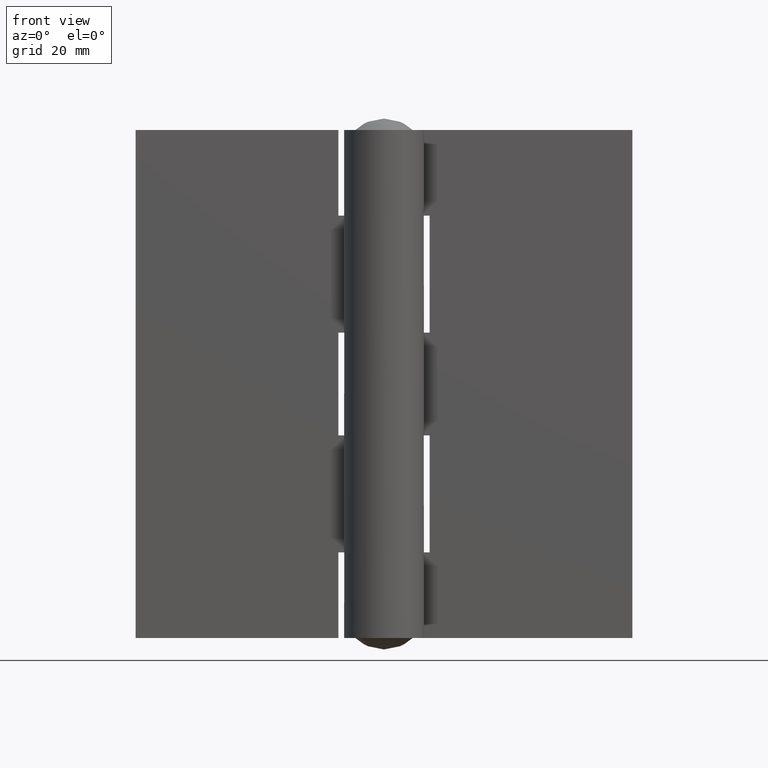
[diagram: clean part render]
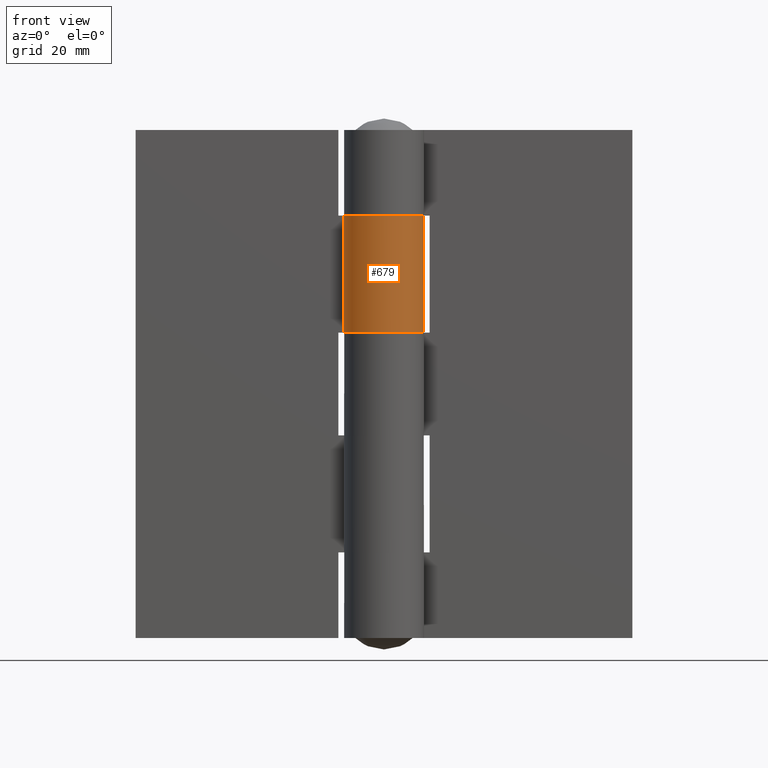
[diagram: same view with one face highlighted and labeled with its STEP entity id]
A machine part, front view. The second image highlights one B-rep face of the part: STEP entity #679.
In plain terms, the highlighted face is a freeform B-spline surface patch.
Its self-contained STEP definition (entity closure, byte-faithful):
#156=CARTESIAN_POINT('',(0.0,7.0,53.500006999999798));
#157=VERTEX_POINT('',#156);
#163=CARTESIAN_POINT('',(-5.779057016503650,3.950000000000000,53.500006999999798));
#164=VERTEX_POINT('',#163);
#165=CARTESIAN_POINT('',(-5.779057016503644,3.950000000000000,53.500006999999798));
#166=CARTESIAN_POINT('',(-8.870032947337561,-0.572259782513830,53.500006999999790));
#167=CARTESIAN_POINT('',(-5.223583395225030,-4.659847262854154,53.500006999999798));
#168=CARTESIAN_POINT('',(-1.577133843112500,-8.747434743194480,53.500006999999790));
#169=CARTESIAN_POINT('',(3.267261850540901,-6.190718859712502,53.500006999999798));
#170=CARTESIAN_POINT('',(8.111657544194310,-3.634002976230521,53.500006999999790));
#171=CARTESIAN_POINT('',(6.794668204481638,1.682998511884744,53.500006999999798));
#172=CARTESIAN_POINT('',(5.477678864768969,7.000000000000001,53.500006999999790));
#173=CARTESIAN_POINT('',(0.0,7.0,53.500006999999798));
#181=(BOUNDED_CURVE()B_SPLINE_CURVE(2,(#165,#166,#167,#168,#169,#170,#171,#172,#173),.UNSPECIFIED.,.F.,.U.)B_SPLINE_CURVE_WITH_KNOTS((3,2,2,2,3),(0.0,0.250000000000000,0.500000000000000,0.750000000000000,1.0),.UNSPECIFIED.)CURVE()GEOMETRIC_REPRESENTATION_ITEM()RATIONAL_B_SPLINE_CURVE((1.0,0.787536779725455,1.0,0.787536779725455,1.0,0.787536779725455,1.0,0.787536779725455,1.0))REPRESENTATION_ITEM(''));
#182=EDGE_CURVE('',#164,#157,#181,.T.);
#333=CARTESIAN_POINT('',(0.0,7.0,74.000007000000011));
#334=VERTEX_POINT('',#333);
#375=CARTESIAN_POINT('',(-5.779057016503650,3.950000000000000,74.000007000000011));
#376=VERTEX_POINT('',#375);
#382=CARTESIAN_POINT('',(0.0,7.0,74.000007000000011));
#383=CARTESIAN_POINT('',(5.477678864768966,7.0,74.000007000000011));
#384=CARTESIAN_POINT('',(6.794668204481638,1.682998511884748,74.000007000000011));
#385=CARTESIAN_POINT('',(8.111657544194312,-3.634002976230510,74.000007000000011));
#386=CARTESIAN_POINT('',(3.267261850540910,-6.190718859712496,74.000007000000011));
#387=CARTESIAN_POINT('',(-1.577133843112491,-8.747434743194484,74.000007000000011));
#388=CARTESIAN_POINT('',(-5.223583395225028,-4.659847262854157,74.000007000000011));
#389=CARTESIAN_POINT('',(-8.870032947337561,-0.572259782513834,74.000007000000011));
#390=CARTESIAN_POINT('',(-5.779057016503646,3.949999999999997,74.000007000000011));
#398=(BOUNDED_CURVE()B_SPLINE_CURVE(2,(#382,#383,#384,#385,#386,#387,#388,#389,#390),.UNSPECIFIED.,.F.,.U.)B_SPLINE_CURVE_WITH_KNOTS((3,2,2,2,3),(0.0,0.250000000000000,0.500000000000000,0.750000000000000,1.0),.UNSPECIFIED.)CURVE()GEOMETRIC_REPRESENTATION_ITEM()RATIONAL_B_SPLINE_CURVE((1.0,0.787536779725455,1.0,0.787536779725455,1.0,0.787536779725455,1.0,0.787536779725455,1.0))REPRESENTATION_ITEM(''));
#399=EDGE_CURVE('',#334,#376,#398,.T.);
#605=CARTESIAN_POINT('',(-5.779057016503650,3.950000000000000,74.000007000000011));
#606=CARTESIAN_POINT('',(-5.779057016503650,3.950000000000000,53.500006999999798));
#607=QUASI_UNIFORM_CURVE('',1,(#605,#606),.UNSPECIFIED.,.F.,.U.);
#608=EDGE_CURVE('',#376,#164,#607,.T.);
#647=CARTESIAN_POINT('',(-5.626998024320518,4.163759507259388,74.512507000000014));
#648=CARTESIAN_POINT('',(-5.626998024320518,4.163759507259388,52.974694499999792));
#649=CARTESIAN_POINT('',(-10.924531416322063,-2.995445984458665,74.512506999999999));
#650=CARTESIAN_POINT('',(-10.924531416322063,-2.995445984458665,52.974694499999785));
#651=CARTESIAN_POINT('',(-2.716362873584171,-6.451462837141163,74.512507000000014));
#652=CARTESIAN_POINT('',(-2.716362873584171,-6.451462837141163,52.974694499999792));
#653=CARTESIAN_POINT('',(5.491805669153720,-9.907479689823660,74.512506999999999));
#654=CARTESIAN_POINT('',(5.491805669153720,-9.907479689823660,52.974694499999785));
#655=CARTESIAN_POINT('',(6.910603791821615,-1.115148076472661,74.512507000000014));
#656=CARTESIAN_POINT('',(6.910603791821615,-1.115148076472661,52.974694499999792));
#657=CARTESIAN_POINT('',(8.329401914489507,7.677183536878339,74.512506999999999));
#658=CARTESIAN_POINT('',(8.329401914489507,7.677183536878339,52.974694499999785));
#659=CARTESIAN_POINT('',(-0.549213670094910,6.978421336131893,74.512507000000014));
#660=CARTESIAN_POINT('',(-0.549213670094910,6.978421336131893,52.974694499999792));
#668=(BOUNDED_SURFACE()B_SPLINE_SURFACE(1,2,((#647,#649,#651,#653,#655,#657,#659),(#648,#650,#652,#654,#656,#658,#660)),.UNSPECIFIED.,.F.,.F.,.U.)B_SPLINE_SURFACE_WITH_KNOTS((2,2),(3,2,2,3),(0.0,21.537812500000229),(0.0,13.606136197411960,27.212272394823920,40.818408592235883),.UNSPECIFIED.)GEOMETRIC_REPRESENTATION_ITEM()RATIONAL_B_SPLINE_SURFACE(((1.0,0.617951097721073,1.0,0.617951097721073,1.0,0.617951097721073,1.0),(1.0,0.617951097721073,1.0,0.617951097721073,1.0,0.617951097721073,1.0)))REPRESENTATION_ITEM('')SURFACE());
#669=ORIENTED_EDGE('',*,*,#182,.T.);
#670=CARTESIAN_POINT('',(0.0,7.0,74.000007000000011));
#671=CARTESIAN_POINT('',(0.0,7.0,53.500006999999798));
#672=QUASI_UNIFORM_CURVE('',1,(#670,#671),.UNSPECIFIED.,.F.,.U.);
#673=EDGE_CURVE('',#334,#157,#672,.T.);
#674=ORIENTED_EDGE('',*,*,#673,.F.);
#675=ORIENTED_EDGE('',*,*,#399,.T.);
#676=ORIENTED_EDGE('',*,*,#608,.T.);
#677=EDGE_LOOP('',(#669,#674,#675,#676));
#678=FACE_OUTER_BOUND('',#677,.T.);
#679=ADVANCED_FACE('',(#678),#668,.T.);